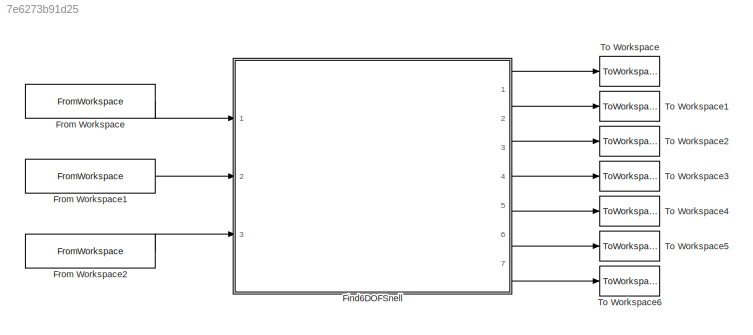
MODEL slx_7e6273b91d25
KIND model
CONFIG AbsTol = auto
CONFIG EnableMultiTasking = off
CONFIG FixedStep = 1
CONFIG MaxStep = auto
CONFIG MinStep = auto
CONFIG RelTol = 1e-3
CONFIG SampleTimeConstraint = Unconstrained
CONFIG Solver = ode8
CONFIG SolverName = ode8
CONFIG StartTime = 0.0
CONFIG StopTime = 4446
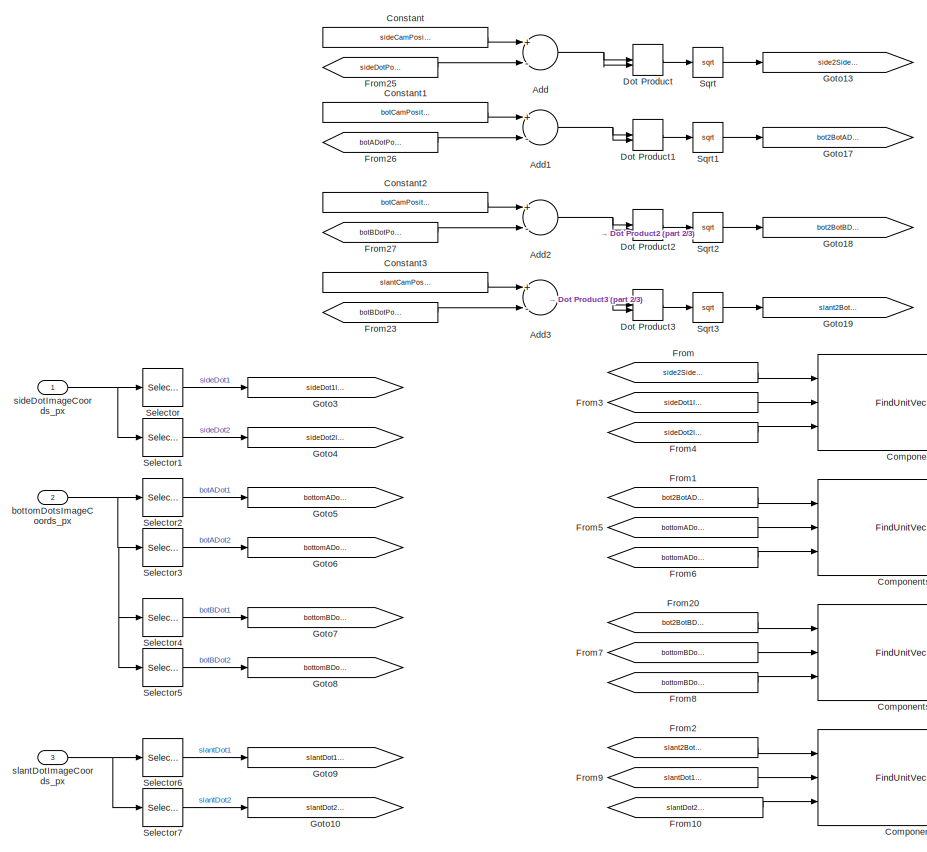
[diagram: Find6DOFSnell - part 1/3, top left region]
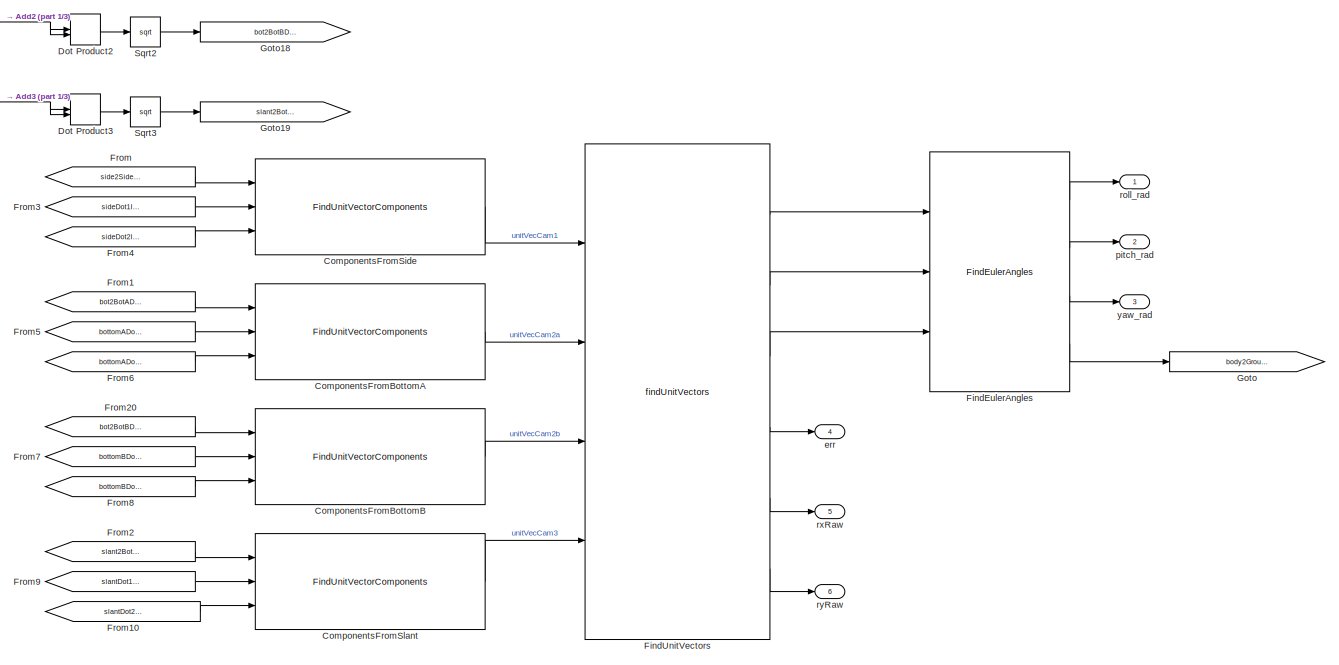
[diagram: Find6DOFSnell - part 2/3, top center region]
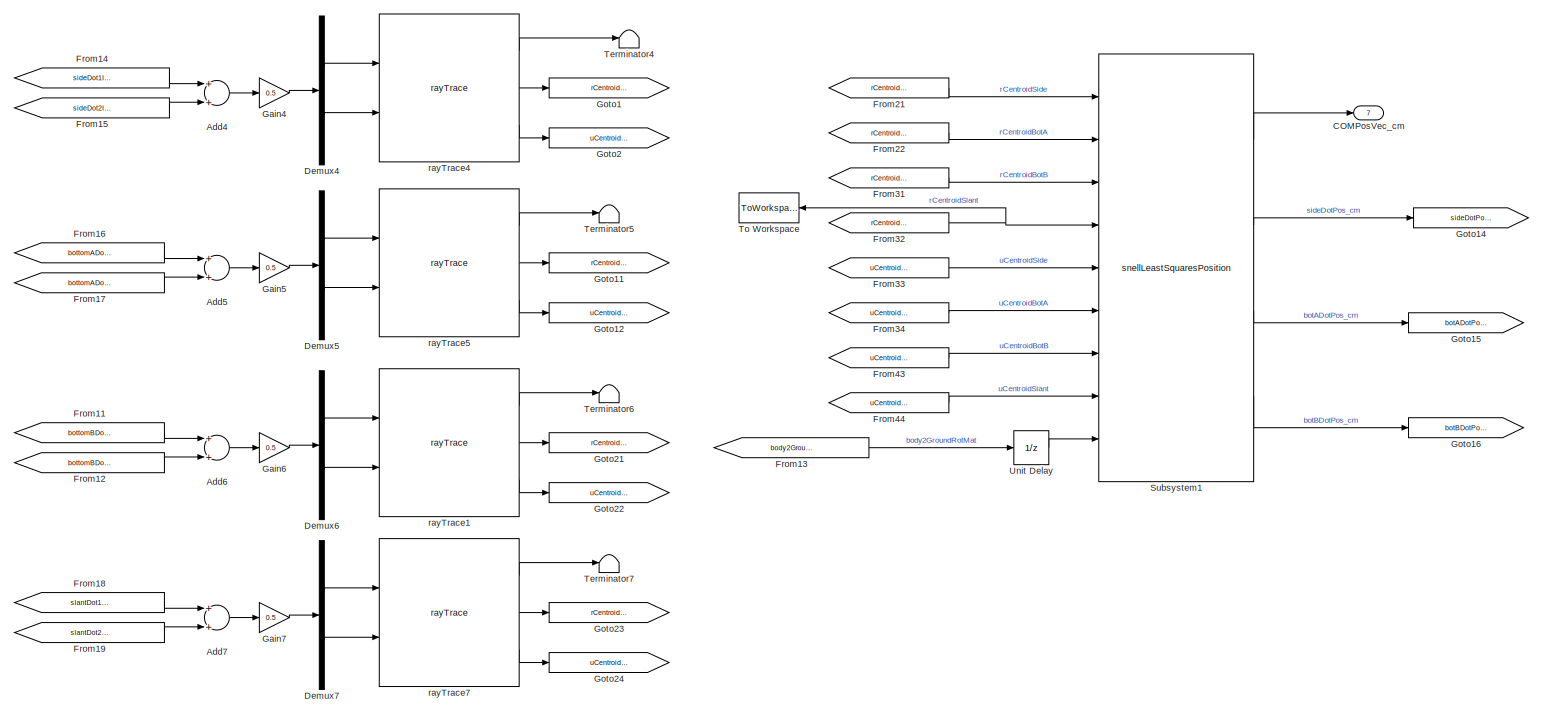
[diagram: Find6DOFSnell - part 3/3, full width, bottom band]
BLOCK [SubSystem] Find6DOFSnell
  AncestorBlock = find6DOFSnell_cl/Find6DOFSnell
  Ports = [3, 7]
  RequestExecContextInheritance = off
BLOCK [Sum] Find6DOFSnell/Add
  InputSameDT = off
  Inputs = +-
  OutDataTypeStr = Inherit: Inherit via internal rule
  Ports = [2, 1]
  SaturateOnIntegerOverflow = off
BLOCK [Sum] Find6DOFSnell/Add1
  InputSameDT = off
  Inputs = +-
  OutDataTypeStr = Inherit: Inherit via internal rule
  Ports = [2, 1]
  SaturateOnIntegerOverflow = off
BLOCK [Sum] Find6DOFSnell/Add2
  InputSameDT = off
  Inputs = +-
  OutDataTypeStr = Inherit: Inherit via internal rule
  Ports = [2, 1]
  SaturateOnIntegerOverflow = off
BLOCK [Sum] Find6DOFSnell/Add3
  InputSameDT = off
  Inputs = +-
  OutDataTypeStr = Inherit: Inherit via internal rule
  Ports = [2, 1]
  SaturateOnIntegerOverflow = off
BLOCK [Sum] Find6DOFSnell/Add4
  InputSameDT = off
  OutDataTypeStr = Inherit: Inherit via internal rule
  Ports = [2, 1]
  SaturateOnIntegerOverflow = off
BLOCK [Sum] Find6DOFSnell/Add5
  InputSameDT = off
  OutDataTypeStr = Inherit: Inherit via internal rule
  Ports = [2, 1]
  SaturateOnIntegerOverflow = off
BLOCK [Sum] Find6DOFSnell/Add6
  InputSameDT = off
  OutDataTypeStr = Inherit: Inherit via internal rule
  Ports = [2, 1]
  SaturateOnIntegerOverflow = off
BLOCK [Sum] Find6DOFSnell/Add7
  InputSameDT = off
  OutDataTypeStr = Inherit: Inherit via internal rule
  Ports = [2, 1]
  SaturateOnIntegerOverflow = off
BLOCK [Outport] Find6DOFSnell/COMPosVec_cm
  IconDisplay = Port number
  Port = 7
  Unit = rad
BLOCK [Reference] Find6DOFSnell/ComponentsFromBottomA  REF=FindUnitVectorComponents_ul/FindUnitVectorComponents
  Ports = [3, 1]
  SourceBlock = FindUnitVectorComponents_ul/FindUnitVectorComponents
BLOCK [Reference] Find6DOFSnell/ComponentsFromBottomB  REF=FindUnitVectorComponents_ul/FindUnitVectorComponents
  Ports = [3, 1]
  SourceBlock = FindUnitVectorComponents_ul/FindUnitVectorComponents
BLOCK [Reference] Find6DOFSnell/ComponentsFromSide  REF=FindUnitVectorComponents_ul/FindUnitVectorComponents
  Ports = [3, 1]
  SourceBlock = FindUnitVectorComponents_ul/FindUnitVectorComponents
BLOCK [Reference] Find6DOFSnell/ComponentsFromSlant  REF=FindUnitVectorComponents_ul/FindUnitVectorComponents
  Ports = [3, 1]
  SourceBlock = FindUnitVectorComponents_ul/FindUnitVectorComponents
BLOCK [Constant] Find6DOFSnell/Constant
  Value = sideCamPositionVec_cm(:)
BLOCK [Constant] Find6DOFSnell/Constant1
  Value = botCamPositionVec_cm(:)
BLOCK [Constant] Find6DOFSnell/Constant2
  Value = botCamPositionVec_cm(:)
BLOCK [Constant] Find6DOFSnell/Constant3
  Value = slantCamPositionVec_cm(:)
BLOCK [Demux] Find6DOFSnell/Demux4
  DisplayOption = bar
  Outputs = 2
  Ports = [1, 2]
BLOCK [Demux] Find6DOFSnell/Demux5
  DisplayOption = bar
  Outputs = 2
  Ports = [1, 2]
BLOCK [Demux] Find6DOFSnell/Demux6
  DisplayOption = bar
  Outputs = 2
  Ports = [1, 2]
BLOCK [Demux] Find6DOFSnell/Demux7
  DisplayOption = bar
  Outputs = 2
  Ports = [1, 2]
BLOCK [DotProduct] Find6DOFSnell/Dot Product
  OutDataTypeStr = Inherit: Inherit via internal rule
BLOCK [DotProduct] Find6DOFSnell/Dot Product1
  OutDataTypeStr = Inherit: Inherit via internal rule
BLOCK [DotProduct] Find6DOFSnell/Dot Product2
  OutDataTypeStr = Inherit: Inherit via internal rule
BLOCK [DotProduct] Find6DOFSnell/Dot Product3
  OutDataTypeStr = Inherit: Inherit via internal rule
BLOCK [Reference] Find6DOFSnell/FindEulerAngles  REF=findEulerAngles_ul/FindEulerAngles
  Ports = [3, 4]
  SourceBlock = findEulerAngles_ul/FindEulerAngles
  SourceType = SubSystem
BLOCK [Reference] Find6DOFSnell/FindUnitVectors  REF=findUnitVectors_ul/findUnitVectors
  Ports = [4, 6]
  SourceBlock = findUnitVectors_ul/findUnitVectors
BLOCK [From] Find6DOFSnell/From
  GotoTag = side2SideDist_cm
BLOCK [From] Find6DOFSnell/From1
  GotoTag = bot2BotADist_cm
BLOCK [From] Find6DOFSnell/From10
  GotoTag = slantDot2ImageCoords_px
BLOCK [From] Find6DOFSnell/From11
  GotoTag = bottomBDot1ImageCoords_px
BLOCK [From] Find6DOFSnell/From12
  GotoTag = bottomBDot2ImageCoords_px
BLOCK [From] Find6DOFSnell/From13
  GotoTag = body2GroundRotationMatrix
BLOCK [From] Find6DOFSnell/From14
  GotoTag = sideDot1ImageCoords_px
BLOCK [From] Find6DOFSnell/From15
  GotoTag = sideDot2ImageCoords_px
BLOCK [From] Find6DOFSnell/From16
  GotoTag = bottomADot1ImageCoords_px
BLOCK [From] Find6DOFSnell/From17
  GotoTag = bottomADot2ImageCoords_px
BLOCK [From] Find6DOFSnell/From18
  GotoTag = slantDot1ImageCoords_px
BLOCK [From] Find6DOFSnell/From19
  GotoTag = slantDot2ImageCoords_px
BLOCK [From] Find6DOFSnell/From2
  GotoTag = slant2BotBDist_cm
BLOCK [From] Find6DOFSnell/From20
  GotoTag = bot2BotBDist_cm
BLOCK [From] Find6DOFSnell/From21
  GotoTag = rCentroidSide
BLOCK [From] Find6DOFSnell/From22
  GotoTag = rCentroidBotA
BLOCK [From] Find6DOFSnell/From23
  GotoTag = botBDotPos_cm
BLOCK [From] Find6DOFSnell/From25
  GotoTag = sideDotPos_cm
BLOCK [From] Find6DOFSnell/From26
  GotoTag = botADotPos_cm
BLOCK [From] Find6DOFSnell/From27
  GotoTag = botBDotPos_cm
BLOCK [From] Find6DOFSnell/From3
  GotoTag = sideDot1ImageCoords_px
BLOCK [From] Find6DOFSnell/From31
  GotoTag = rCentroidBotB
BLOCK [From] Find6DOFSnell/From32
  GotoTag = rCentroidSlant
BLOCK [From] Find6DOFSnell/From33
  GotoTag = uCentroidSide
BLOCK [From] Find6DOFSnell/From34
  GotoTag = uCentroidBotA
BLOCK [From] Find6DOFSnell/From4
  GotoTag = sideDot2ImageCoords_px
BLOCK [From] Find6DOFSnell/From43
  GotoTag = uCentroidBotB
BLOCK [From] Find6DOFSnell/From44
  GotoTag = uCentroidSlant
BLOCK [From] Find6DOFSnell/From5
  GotoTag = bottomADot1ImageCoords_px
BLOCK [From] Find6DOFSnell/From6
  GotoTag = bottomADot2ImageCoords_px
BLOCK [From] Find6DOFSnell/From7
  GotoTag = bottomBDot1ImageCoords_px
BLOCK [From] Find6DOFSnell/From8
  GotoTag = bottomBDot2ImageCoords_px
BLOCK [From] Find6DOFSnell/From9
  GotoTag = slantDot1ImageCoords_px
BLOCK [Gain] Find6DOFSnell/Gain4
  Gain = 0.5
  OutDataTypeStr = Inherit: Inherit via internal rule
  ParamDataTypeStr = Inherit: Inherit via internal rule
  SaturateOnIntegerOverflow = off
BLOCK [Gain] Find6DOFSnell/Gain5
  Gain = 0.5
  OutDataTypeStr = Inherit: Inherit via internal rule
  ParamDataTypeStr = Inherit: Inherit via internal rule
  SaturateOnIntegerOverflow = off
BLOCK [Gain] Find6DOFSnell/Gain6
  Gain = 0.5
  OutDataTypeStr = Inherit: Inherit via internal rule
  ParamDataTypeStr = Inherit: Inherit via internal rule
  SaturateOnIntegerOverflow = off
BLOCK [Gain] Find6DOFSnell/Gain7
  Gain = 0.5
  OutDataTypeStr = Inherit: Inherit via internal rule
  ParamDataTypeStr = Inherit: Inherit via internal rule
  SaturateOnIntegerOverflow = off
BLOCK [Goto] Find6DOFSnell/Goto
  GotoTag = body2GroundRotationMatrix
BLOCK [Goto] Find6DOFSnell/Goto1
  GotoTag = rCentroidSide
BLOCK [Goto] Find6DOFSnell/Goto10
  GotoTag = slantDot2ImageCoords_px
BLOCK [Goto] Find6DOFSnell/Goto11
  GotoTag = rCentroidBotA
BLOCK [Goto] Find6DOFSnell/Goto12
  GotoTag = uCentroidBotA
BLOCK [Goto] Find6DOFSnell/Goto13
  GotoTag = side2SideDist_cm
BLOCK [Goto] Find6DOFSnell/Goto14
  GotoTag = sideDotPos_cm
BLOCK [Goto] Find6DOFSnell/Goto15
  GotoTag = botADotPos_cm
BLOCK [Goto] Find6DOFSnell/Goto16
  GotoTag = botBDotPos_cm
BLOCK [Goto] Find6DOFSnell/Goto17
  GotoTag = bot2BotADist_cm
BLOCK [Goto] Find6DOFSnell/Goto18
  GotoTag = bot2BotBDist_cm
BLOCK [Goto] Find6DOFSnell/Goto19
  GotoTag = slant2BotBDist_cm
BLOCK [Goto] Find6DOFSnell/Goto2
  GotoTag = uCentroidSide
BLOCK [Goto] Find6DOFSnell/Goto21
  GotoTag = rCentroidBotB
BLOCK [Goto] Find6DOFSnell/Goto22
  GotoTag = uCentroidBotB
BLOCK [Goto] Find6DOFSnell/Goto23
  GotoTag = rCentroidSlant
BLOCK [Goto] Find6DOFSnell/Goto24
  GotoTag = uCentroidSlant
BLOCK [Goto] Find6DOFSnell/Goto3
  GotoTag = sideDot1ImageCoords_px
BLOCK [Goto] Find6DOFSnell/Goto4
  GotoTag = sideDot2ImageCoords_px
BLOCK [Goto] Find6DOFSnell/Goto5
  GotoTag = bottomADot1ImageCoords_px
BLOCK [Goto] Find6DOFSnell/Goto6
  GotoTag = bottomADot2ImageCoords_px
BLOCK [Goto] Find6DOFSnell/Goto7
  GotoTag = bottomBDot1ImageCoords_px
BLOCK [Goto] Find6DOFSnell/Goto8
  GotoTag = bottomBDot2ImageCoords_px
BLOCK [Goto] Find6DOFSnell/Goto9
  GotoTag = slantDot1ImageCoords_px
BLOCK [Selector] Find6DOFSnell/Selector
  IndexOptions = Index vector (dialog)
  Indices = [1 2]
  InputPortWidth = 4
  OutputSizes = 1
  Ports = [1, 1]
BLOCK [Selector] Find6DOFSnell/Selector1
  IndexOptions = Index vector (dialog)
  Indices = [3 4]
  InputPortWidth = 4
  OutputSizes = 1
  Ports = [1, 1]
BLOCK [Selector] Find6DOFSnell/Selector2
  IndexOptions = Index vector (dialog)
  Indices = [1 2]
  InputPortWidth = 8
  OutputSizes = 1
  Ports = [1, 1]
BLOCK [Selector] Find6DOFSnell/Selector3
  IndexOptions = Index vector (dialog)
  Indices = [3 4]
  InputPortWidth = 8
  OutputSizes = 1
  Ports = [1, 1]
BLOCK [Selector] Find6DOFSnell/Selector4
  IndexOptions = Index vector (dialog)
  Indices = [5 6]
  InputPortWidth = 8
  OutputSizes = 1
  Ports = [1, 1]
BLOCK [Selector] Find6DOFSnell/Selector5
  IndexOptions = Index vector (dialog)
  Indices = [7 8]
  InputPortWidth = 8
  OutputSizes = 1
  Ports = [1, 1]
BLOCK [Selector] Find6DOFSnell/Selector6
  IndexOptions = Index vector (dialog)
  Indices = [1 2]
  InputPortWidth = 4
  OutputSizes = 1
  Ports = [1, 1]
BLOCK [Selector] Find6DOFSnell/Selector7
  IndexOptions = Index vector (dialog)
  Indices = [3 4]
  InputPortWidth = 4
  OutputSizes = 1
  Ports = [1, 1]
BLOCK [Sqrt] Find6DOFSnell/Sqrt
BLOCK [Sqrt] Find6DOFSnell/Sqrt1
BLOCK [Sqrt] Find6DOFSnell/Sqrt2
BLOCK [Sqrt] Find6DOFSnell/Sqrt3
BLOCK [Reference] Find6DOFSnell/Subsystem1  REF=snellLeastSquaresPosition_ul/snellLeastSquaresPosition
  Ports = [9, 4]
  SourceBlock = snellLeastSquaresPosition_ul/snellLeastSquaresPosition
BLOCK [Terminator] Find6DOFSnell/Terminator4
BLOCK [Terminator] Find6DOFSnell/Terminator5
BLOCK [Terminator] Find6DOFSnell/Terminator6
BLOCK [Terminator] Find6DOFSnell/Terminator7
BLOCK [ToWorkspace] Find6DOFSnell/To Workspace
  FixptAsFi = on
  MaxDataPoints = inf
  Ports = [1]
  SampleTime = -1
  Save2DSignal = 3-D array (concatenate along third dimension)
  VariableName = rC
BLOCK [UnitDelay] Find6DOFSnell/Unit Delay
  InitialCondition = eye(3)
  InputProcessing = Elements as channels (sample based)
  SampleTime = -1
BLOCK [Inport] Find6DOFSnell/bottomDotsImageCoords_px
  IconDisplay = Port number
  Port = 2
BLOCK [Outport] Find6DOFSnell/err
  IconDisplay = Port number
  Port = 4
BLOCK [Outport] Find6DOFSnell/pitch_rad
  IconDisplay = Port number
  Port = 2
  Unit = rad
BLOCK [Reference] Find6DOFSnell/rayTrace1  REF=rayTrace_ul/rayTrace
  Ports = [2, 3]
  SourceBlock = rayTrace_ul/rayTrace
BLOCK [Reference] Find6DOFSnell/rayTrace4  REF=rayTrace_ul/rayTrace
  Ports = [2, 3]
  SourceBlock = rayTrace_ul/rayTrace
BLOCK [Reference] Find6DOFSnell/rayTrace5  REF=rayTrace_ul/rayTrace
  Ports = [2, 3]
  SourceBlock = rayTrace_ul/rayTrace
BLOCK [Reference] Find6DOFSnell/rayTrace7  REF=rayTrace_ul/rayTrace
  Ports = [2, 3]
  SourceBlock = rayTrace_ul/rayTrace
BLOCK [Outport] Find6DOFSnell/roll_rad
  IconDisplay = Port number
  Unit = rad
BLOCK [Outport] Find6DOFSnell/rxRaw
  IconDisplay = Port number
  Port = 5
BLOCK [Outport] Find6DOFSnell/ryRaw
  IconDisplay = Port number
  Port = 6
BLOCK [Inport] Find6DOFSnell/sideDotImageCoords_px
  IconDisplay = Port number
BLOCK [Inport] Find6DOFSnell/slantDotImageCoords_px
  IconDisplay = Port number
  Port = 3
BLOCK [Outport] Find6DOFSnell/yaw_rad
  IconDisplay = Port number
  Port = 3
  Unit = rad
BLOCK [FromWorkspace] From Workspace
  SampleTime = 0
  VariableName = sideDot
  ZeroCross = on
BLOCK [FromWorkspace] From Workspace1
  SampleTime = 0
  VariableName = botDot
  ZeroCross = on
BLOCK [FromWorkspace] From Workspace2
  SampleTime = 0
  VariableName = slantDot
  ZeroCross = on
BLOCK [ToWorkspace] To Workspace
  FixptAsFi = on
  MaxDataPoints = inf
  Ports = [1]
  SampleTime = -1
  Save2DSignal = 3-D array (concatenate along third dimension)
  VariableName = roll_rad
BLOCK [ToWorkspace] To Workspace1
  MaxDataPoints = inf
  Ports = [1]
  SampleTime = -1
  Save2DSignal = 3-D array (concatenate along third dimension)
  VariableName = pitch_rad
BLOCK [ToWorkspace] To Workspace2
  FixptAsFi = on
  MaxDataPoints = inf
  Ports = [1]
  SampleTime = -1
  Save2DSignal = 3-D array (concatenate along third dimension)
  VariableName = yaw_rad
BLOCK [ToWorkspace] To Workspace3
  FixptAsFi = on
  MaxDataPoints = inf
  Ports = [1]
  SampleTime = -1
  Save2DSignal = 3-D array (concatenate along third dimension)
  VariableName = err
BLOCK [ToWorkspace] To Workspace4
  FixptAsFi = on
  MaxDataPoints = inf
  Ports = [1]
  SampleTime = -1
  Save2DSignal = 3-D array (concatenate along third dimension)
  VariableName = rxRaw
BLOCK [ToWorkspace] To Workspace5
  FixptAsFi = on
  MaxDataPoints = inf
  Ports = [1]
  SampleTime = -1
  Save2DSignal = 3-D array (concatenate along third dimension)
  VariableName = ryRaw
BLOCK [ToWorkspace] To Workspace6
  FixptAsFi = on
  MaxDataPoints = inf
  Ports = [1]
  SampleTime = -1
  Save2DSignal = 3-D array (concatenate along third dimension)
  VariableName = CoMPos
LINE Find6DOFSnell:1 -> To Workspace:1
LINE Find6DOFSnell:2 -> To Workspace1:1
LINE Find6DOFSnell:3 -> To Workspace2:1
LINE Find6DOFSnell:4 -> To Workspace3:1
LINE Find6DOFSnell:5 -> To Workspace4:1
LINE Find6DOFSnell:6 -> To Workspace5:1
LINE Find6DOFSnell:7 -> To Workspace6:1
LINE From Workspace1:1 -> Find6DOFSnell:2
LINE From Workspace2:1 -> Find6DOFSnell:3
LINE From Workspace:1 -> Find6DOFSnell:1
